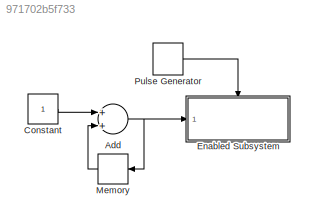
MODEL slx_971702b5f733
KIND model
CONFIG AbsTol = auto
CONFIG EnableMultiTasking = off
CONFIG FixedStep = .1
CONFIG MaxStep = auto
CONFIG MinStep = auto
CONFIG RelTol = 1e-3
CONFIG SampleTimeConstraint = Unconstrained
CONFIG Solver = FixedStepAuto
CONFIG SolverName = FixedStepAuto
CONFIG StartTime = 0.0
CONFIG StopTime = 5
BLOCK [Sum] Add
  InputSameDT = off
  OutDataTypeStr = Inherit: Inherit via internal rule
  Ports = [2, 1]
  SaturateOnIntegerOverflow = off
BLOCK [Constant] Constant
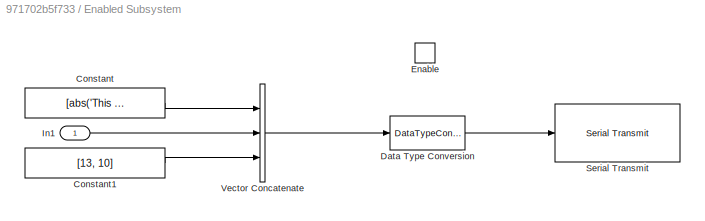
BLOCK [SubSystem] Enabled Subsystem
  Ports = [1, 0, 1]
  RequestExecContextInheritance = off
  TreatAsAtomicUnit = on
BLOCK [Constant] Enabled Subsystem/Constant
  Value = [abs('This is a test ')]
BLOCK [Constant] Enabled Subsystem/Constant1
  Value = [13, 10]
BLOCK [DataTypeConversion] Enabled Subsystem/Data Type Conversion
  OutDataTypeStr = uint8
  RndMeth = Floor
  SaturateOnIntegerOverflow = off
BLOCK [EnablePort] Enabled Subsystem/Enable
  Ports = []
BLOCK [Inport] Enabled Subsystem/In1
  IconDisplay = Port number
BLOCK [Reference] Enabled Subsystem/Serial Transmit  REF=arduinolib/Serial Transmit
  Ports = [1]
  SourceBlock = arduinolib/Serial Transmit
  SourceProductBaseCode = ARDUINO
  SourceProductName = Simulink Support Package for Arduino Hardware
  SourceType = Arduino Serial Transmit
BLOCK [Concatenate] Enabled Subsystem/Vector Concatenate
  NumInputs = 3
  Ports = [3, 1]
BLOCK [Memory] Memory
BLOCK [DiscretePulseGenerator] Pulse Generator
  Period = 1
  Ports = [0, 1]
  PulseType = Time based
  PulseWidth = 50
NET Add:1 -> Enabled Subsystem:1, Memory:1
LINE Constant:1 -> Add:1
LINE Enabled Subsystem/Constant1:1 -> Enabled Subsystem/Vector Concatenate:3
LINE Enabled Subsystem/Constant:1 -> Enabled Subsystem/Vector Concatenate:1
LINE Enabled Subsystem/Data Type Conversion:1 -> Enabled Subsystem/Serial Transmit:1
LINE Enabled Subsystem/In1:1 -> Enabled Subsystem/Vector Concatenate:2
LINE Enabled Subsystem/Vector Concatenate:1 -> Enabled Subsystem/Data Type Conversion:1
LINE Memory:1 -> Add:2
LINE Pulse Generator:1 -> Enabled Subsystem:enable
note: NET lines group one-source signal fan-out (src -> all destinations, sorted); 1:1 wires keep LINE
